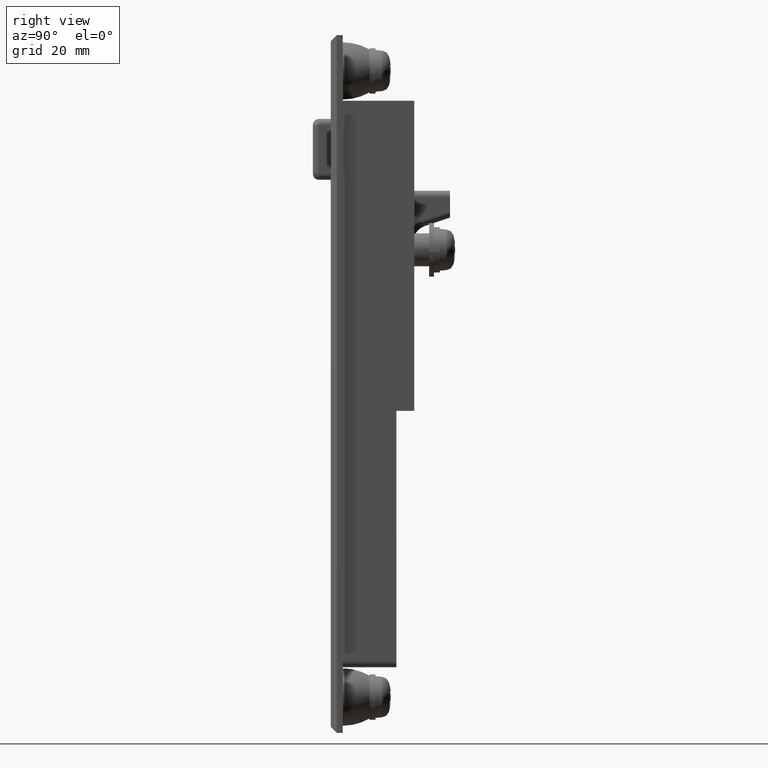
[diagram: clean part render]
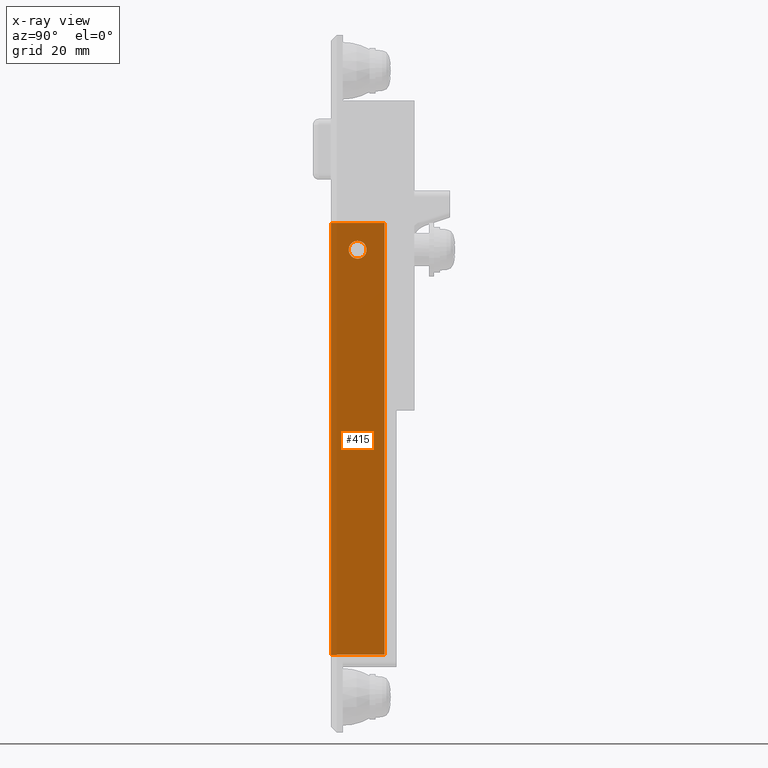
[diagram: x-ray — body ghosted, one internal face saturated and labeled with its STEP entity id]
A machine part, right view, then the same camera in x-ray: the body is ghosted and one INTERNAL B-rep face — a face not visible from any outside direction — is saturated and labeled: STEP entity #415.
In plain terms, the highlighted planar face has unit normal (1, 0, 0).
Its self-contained STEP definition (entity closure, byte-faithful):
#415=ADVANCED_FACE('',(#1506,#1507),#1505,.T.);
#1505=PLANE('',#3924);
#1506=FACE_OUTER_BOUND('',#3925,.T.);
#1507=FACE_BOUND('',#3926,.T.);
#3921=CARTESIAN_POINT('',(-1.49000000000E+01,9.50000000000E+00,1.17499800000E+01));
#3922=DIRECTION('',(0.00000000000E+00,-1.00000000000E+00,0.00000000000E+00));
#3923=DIRECTION('',(0.00000000000E+00,0.00000000000E+00,-1.00000000000E+00));
#3924=AXIS2_PLACEMENT_3D('',#3921,#3922,#3923);
#3925=EDGE_LOOP('',(#5427,#5428,#5429,#5430,#5431,#5432));
#3926=EDGE_LOOP('',(#5433,#5434,#5435));
#5427=ORIENTED_EDGE('',*,*,#6662,.F.);
#5428=ORIENTED_EDGE('',*,*,#6663,.F.);
#5429=ORIENTED_EDGE('',*,*,#6664,.T.);
#5430=ORIENTED_EDGE('',*,*,#6665,.F.);
#5431=ORIENTED_EDGE('',*,*,#6666,.T.);
#5432=ORIENTED_EDGE('',*,*,#6667,.T.);
#5433=ORIENTED_EDGE('',*,*,#6668,.T.);
#5434=ORIENTED_EDGE('',*,*,#6669,.T.);
#5435=ORIENTED_EDGE('',*,*,#6670,.T.);
#6662=EDGE_CURVE('',#8943,#8944,#8945,.T.);
#6663=EDGE_CURVE('',#8951,#8943,#8952,.T.);
#6664=EDGE_CURVE('',#8951,#8958,#8959,.T.);
#6665=EDGE_CURVE('',#8965,#8958,#8966,.T.);
#6666=EDGE_CURVE('',#8965,#8972,#8973,.T.);
#6667=EDGE_CURVE('',#8972,#8944,#8979,.T.);
#6668=EDGE_CURVE('',#8985,#8986,#8987,.T.);
#6669=EDGE_CURVE('',#8986,#8993,#8994,.T.);
#6670=EDGE_CURVE('',#8993,#8985,#9000,.T.);
#8943=VERTEX_POINT('',#13179);
#8944=VERTEX_POINT('',#13180);
#8945=LINE('',#13181,#13182);
#8951=VERTEX_POINT('',#13184);
#8952=LINE('',#13185,#13186);
#8958=VERTEX_POINT('',#13188);
#8959=LINE('',#13189,#13190);
#8965=VERTEX_POINT('',#13192);
#8966=LINE('',#13193,#13194);
#8972=VERTEX_POINT('',#13196);
#8973=LINE('',#13197,#13198);
#8979=LINE('',#13200,#13201);
#8985=VERTEX_POINT('',#13203);
#8986=VERTEX_POINT('',#13204);
#8987=CIRCLE('',#13208,1.50000000038E+00);
#8993=VERTEX_POINT('',#13209);
#8994=CIRCLE('',#13213,1.50000000038E+00);
#9000=CIRCLE('',#13217,1.50000000038E+00);
#13179=CARTESIAN_POINT('',(-1.40000000000E+01,9.50000000000E+00,-6.79998000000E+01));
#13180=CARTESIAN_POINT('',(-1.40000000000E+01,9.50000000000E+00,4.50000000000E+00));
#13181=CARTESIAN_POINT('',(-1.40000000000E+01,9.50000000000E+00,-6.79998000000E+01));
#13182=VECTOR('',#13183,7.24998000000E+01);
#13183=DIRECTION('',(0.00000000000E+00,0.00000000000E+00,1.00000000000E+00));
#13184=CARTESIAN_POINT('',(-1.30000000000E+01,9.50000000000E+00,-6.79998000000E+01));
#13185=CARTESIAN_POINT('',(-1.30000000000E+01,9.50000000000E+00,-6.79998000000E+01));
#13186=VECTOR('',#13187,1.00000000000E+00);
#13187=DIRECTION('',(-1.00000000000E+00,0.00000000000E+00,0.00000000000E+00));
#13188=CARTESIAN_POINT('',(-1.30000000000E+01,9.50000000000E+00,-6.78998000000E+01));
#13189=CARTESIAN_POINT('',(-1.30000000000E+01,9.50000000000E+00,-6.79998000000E+01));
#13190=VECTOR('',#13191,1.00000000000E-01);
#13191=DIRECTION('',(0.00000000000E+00,0.00000000000E+00,1.00000000000E+00));
#13192=CARTESIAN_POINT('',(-5.00000000000E+00,9.50000000000E+00,-6.78998000000E+01));
#13193=CARTESIAN_POINT('',(-5.00000000000E+00,9.50000000000E+00,-6.78998000000E+01));
#13194=VECTOR('',#13195,8.00000000000E+00);
#13195=DIRECTION('',(-1.00000000000E+00,0.00000000000E+00,0.00000000000E+00));
#13196=CARTESIAN_POINT('',(-5.00000000000E+00,9.50000000000E+00,4.50000000000E+00));
#13197=CARTESIAN_POINT('',(-5.00000000000E+00,9.50000000000E+00,-6.78998000000E+01));
#13198=VECTOR('',#13199,7.23998000000E+01);
#13199=DIRECTION('',(0.00000000000E+00,0.00000000000E+00,1.00000000000E+00));
#13200=CARTESIAN_POINT('',(-5.00000000000E+00,9.50000000000E+00,4.50000000000E+00));
#13201=VECTOR('',#13202,9.00000000000E+00);
#13202=DIRECTION('',(-1.00000000000E+00,0.00000000000E+00,0.00000000000E+00));
#13203=CARTESIAN_POINT('',(-9.50000000000E+00,9.50000000000E+00,-1.50000000076E+00));
#13204=CARTESIAN_POINT('',(-1.09883993215E+01,9.50000000000E+00,-1.86192003251E-01));
#13205=CARTESIAN_POINT('',(-9.50000000033E+00,9.50000000000E+00,-3.78380549115E-10));
#13206=DIRECTION('',(4.18691322316E-16,1.00000000000E+00,-3.55271367800E-15));
#13207=DIRECTION('',(2.22661888983E-10,-3.55271367809E-15,-1.00000000000E+00));
#13208=AXIS2_PLACEMENT_3D('',#13205,#13206,#13207);
#13209=CARTESIAN_POINT('',(-8.01160551979E+00,9.50000000000E+00,1.86230693736E-01));
#13210=CARTESIAN_POINT('',(-9.50000000033E+00,9.50000000000E+00,-3.78380549115E-10));
#13211=DIRECTION('',(4.18691322316E-16,1.00000000000E+00,-3.55271367800E-15));
#13212=DIRECTION('',(2.22661888983E-10,-3.55271367809E-15,-1.00000000000E+00));
#13213=AXIS2_PLACEMENT_3D('',#13210,#13211,#13212);
#13214=CARTESIAN_POINT('',(-9.50000000033E+00,9.50000000000E+00,-3.78380549115E-10));
#13215=DIRECTION('',(4.18691322316E-16,1.00000000000E+00,-3.55271367800E-15));
#13216=DIRECTION('',(2.22661888983E-10,-3.55271367809E-15,-1.00000000000E+00));
#13217=AXIS2_PLACEMENT_3D('',#13214,#13215,#13216);